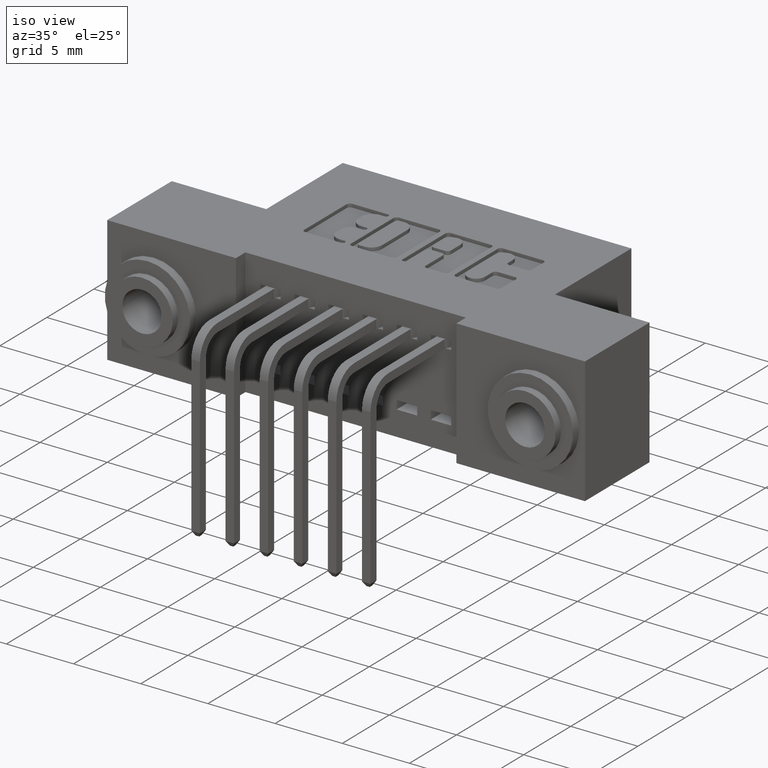
[diagram: clean part render]
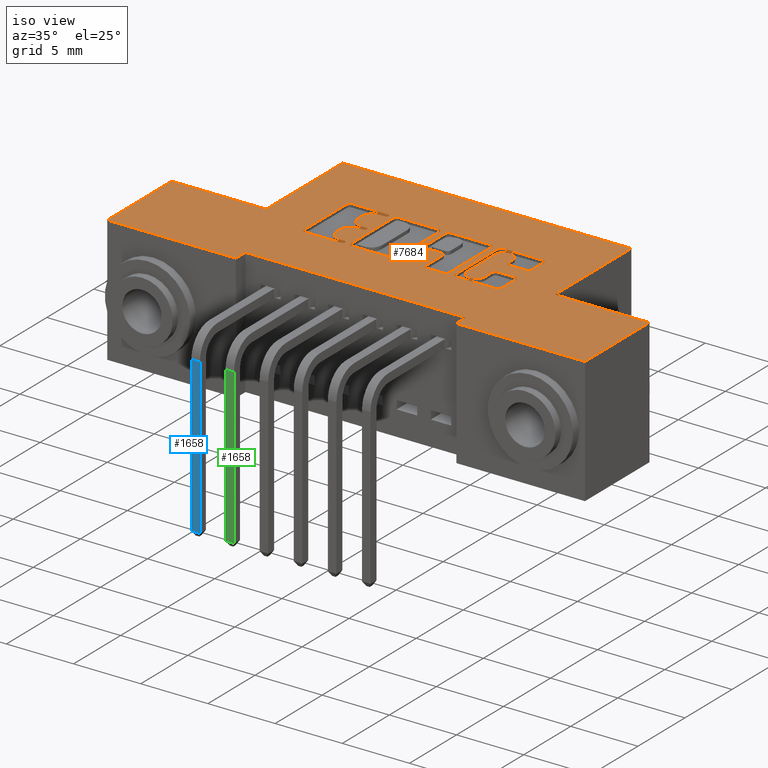
[diagram: same view with three faces highlighted in distinct colors, each labeled with its STEP entity id]
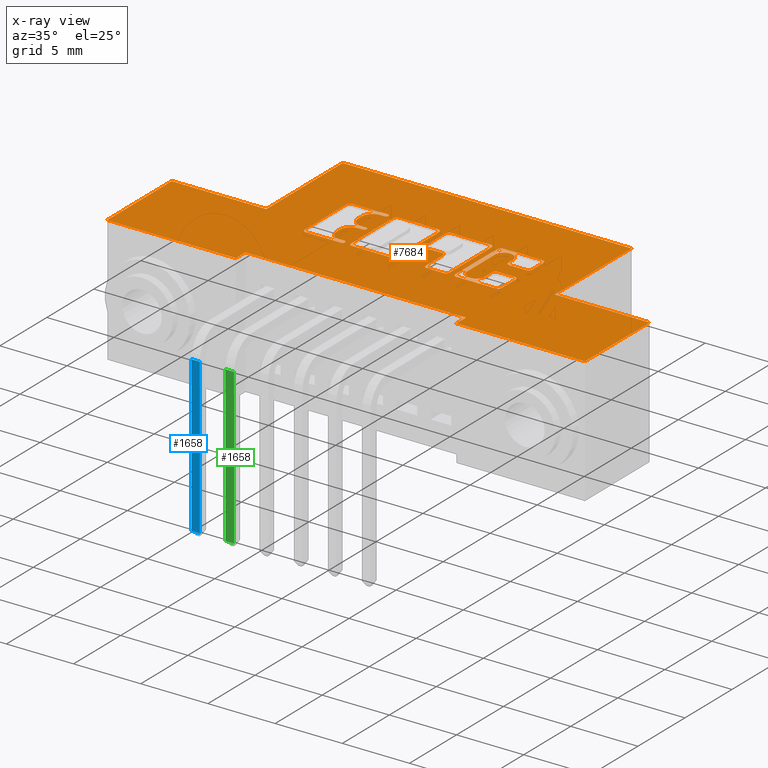
[diagram: x-ray of the same camera — body ghosted, the three highlighted faces saturated]
A machine part, iso view with three faces highlighted in distinct colors.
The next image is the same camera in x-ray (body ghosted, the three faces saturated) — at least one of them is partly hidden behind the body in this view.
Their STEP definitions:

[orange] entity #7684 — the highlighted planar face has unit normal (0, 0, -1).
#4 = VERTEX_POINT ( 'NONE', #7452 ) ;
#9 = EDGE_CURVE ( 'NONE', #8145, #2793, #5683, .T. ) ;
#11 = DIRECTION ( 'NONE',  ( 1.000000000000000000, 0.0000000000000000000, 0.0000000000000000000 ) ) ;
#69 = CARTESIAN_POINT ( 'NONE',  ( -2.134256245050205600E-018, 0.2699999999999999600, 0.0000000000000000000 ) ) ;
#70 = CIRCLE ( 'NONE', #4045, 0.006870969142663527000 ) ;
#108 = ORIENTED_EDGE ( 'NONE', *, *, #4227, .F. ) ;
#138 = CARTESIAN_POINT ( 'NONE',  ( 0.4882269153529095200, 0.0000000000000000000, 0.0000000000000000000 ) ) ;
#164 = EDGE_CURVE ( 'NONE', #8755, #7072, #8018, .T. ) ;
#192 = DIRECTION ( 'NONE',  ( -0.0000000000000000000, 0.0000000000000000000, 1.000000000000000000 ) ) ;
#198 = CARTESIAN_POINT ( 'NONE',  ( 0.5657707099629759600, 0.2168432979619831800, 0.0000000000000000000 ) ) ;
#207 = CARTESIAN_POINT ( 'NONE',  ( 0.5196370600050840300, 0.2767188862052005200, 0.0000000000000000000 ) ) ;
#211 = ORIENTED_EDGE ( 'NONE', *, *, #2259, .F. ) ;
#225 = ORIENTED_EDGE ( 'NONE', *, *, #2170, .F. ) ;
#232 = CIRCLE ( 'NONE', #7446, 0.03141014465218178200 ) ;
#309 = VERTEX_POINT ( 'NONE', #6603 ) ;
#320 = EDGE_CURVE ( 'NONE', #5410, #2401, #7406, .T. ) ;
#325 = VECTOR ( 'NONE', #5091, 39.37007874015748100 ) ;
#327 = ORIENTED_EDGE ( 'NONE', *, *, #1580, .F. ) ;
#331 = CARTESIAN_POINT ( 'NONE',  ( 0.9868629617061319700, 0.4033410318342109400, 0.0000000000000000000 ) ) ;
#345 = VECTOR ( 'NONE', #1190, 39.37007874015748100 ) ;
#360 = VERTEX_POINT ( 'NONE', #3255 ) ;
#378 = LINE ( 'NONE', #1042, #3935 ) ;
#405 = VERTEX_POINT ( 'NONE', #69 ) ;
#407 = VERTEX_POINT ( 'NONE', #556 ) ;
#420 = VERTEX_POINT ( 'NONE', #4756 ) ;
#426 = VERTEX_POINT ( 'NONE', #952 ) ;
#431 = EDGE_CURVE ( 'NONE', #890, #7905, #4522, .T. ) ;
#522 = EDGE_CURVE ( 'NONE', #5961, #3945, #8946, .T. ) ;
#527 = CIRCLE ( 'NONE', #2618, 0.009815670203803203800 ) ;
#539 = DIRECTION ( 'NONE',  ( 1.000000000000000000, 0.0000000000000000000, 0.0000000000000000000 ) ) ;
#556 = CARTESIAN_POINT ( 'NONE',  ( 0.6815956183678620900, 0.2168432979619831800, 0.0000000000000000000 ) ) ;
#557 = EDGE_CURVE ( 'NONE', #426, #7886, #3584, .T. ) ;
#580 = CARTESIAN_POINT ( 'NONE',  ( 0.5559550397591692700, 0.0000000000000000000, 0.0000000000000000000 ) ) ;
#582 = VECTOR ( 'NONE', #4654, 39.37007874015748100 ) ;
#591 = ORIENTED_EDGE ( 'NONE', *, *, #7331, .F. ) ;
#612 = EDGE_CURVE ( 'NONE', #5150, #2185, #6562, .T. ) ;
#629 = CARTESIAN_POINT ( 'NONE',  ( 0.9966786319099720800, 0.0000000000000000000, 0.0000000000000000000 ) ) ;
#636 = DIRECTION ( 'NONE',  ( -0.0000000000000000000, 0.0000000000000000000, 1.000000000000000000 ) ) ;
#692 = CIRCLE ( 'NONE', #7195, 0.009815670203804980100 ) ;
#693 = CARTESIAN_POINT ( 'NONE',  ( 0.6914112885716690000, 0.2266589681657899300, 0.0000000000000000000 ) ) ;
#697 = ORIENTED_EDGE ( 'NONE', *, *, #8234, .F. ) ;
#717 = AXIS2_PLACEMENT_3D ( 'NONE', #7071, #7061, #7053 ) ;
#732 = EDGE_CURVE ( 'NONE', #4709, #5961, #4105, .T. ) ;
#741 = VECTOR ( 'NONE', #5620, 39.37007874015748100 ) ;
#751 = DIRECTION ( 'NONE',  ( 0.0000000000000000000, 1.000000000000000000, -0.0000000000000000000 ) ) ;
#756 = ORIENTED_EDGE ( 'NONE', *, *, #5928, .F. ) ;
#774 = ORIENTED_EDGE ( 'NONE', *, *, #920, .F. ) ;
#781 = CARTESIAN_POINT ( 'NONE',  ( 0.6914112885716690000, 0.0000000000000000000, 0.0000000000000000000 ) ) ;
#784 = VECTOR ( 'NONE', #871, 39.37007874015748100 ) ;
#785 = VERTEX_POINT ( 'NONE', #2537 ) ;
#803 = CARTESIAN_POINT ( 'NONE',  ( 1.399999999999999900, 0.2699999999999999600, 0.0000000000000000000 ) ) ;
#809 = ORIENTED_EDGE ( 'NONE', *, *, #5952, .F. ) ;
#830 = CARTESIAN_POINT ( 'NONE',  ( 0.9274781569731658200, 0.3537718973050452100, 0.0000000000000000000 ) ) ;
#837 = CARTESIAN_POINT ( 'NONE',  ( 0.5196370600051253300, 0.3994147637527357100, 0.0000000000000000000 ) ) ;
#840 = CIRCLE ( 'NONE', #5956, 0.009815670203806754800 ) ;
#871 = DIRECTION ( 'NONE',  ( 0.0000000000000000000, -1.000000000000000000, 0.0000000000000000000 ) ) ;
#890 = VERTEX_POINT ( 'NONE', #6960 ) ;
#908 = VERTEX_POINT ( 'NONE', #7197 ) ;
#920 = EDGE_CURVE ( 'NONE', #5279, #2678, #692, .T. ) ;
#927 = CARTESIAN_POINT ( 'NONE',  ( 0.9966786319099402200, 0.2865345564089704100, 0.0000000000000000000 ) ) ;
#951 = LINE ( 'NONE', #6952, #6292 ) ;
#952 = CARTESIAN_POINT ( 'NONE',  ( 0.5331336065353099500, 0.3218709691426838700, 0.0000000000000000000 ) ) ;
#956 = EDGE_CURVE ( 'NONE', #8245, #7664, #3994, .T. ) ;
#1000 = DIRECTION ( 'NONE',  ( 1.000000000000000000, 0.0000000000000000000, 0.0000000000000000000 ) ) ;
#1019 = FACE_BOUND ( 'NONE', #1244, .T. ) ;
#1033 = DIRECTION ( 'NONE',  ( 0.0000000000000000000, 1.000000000000000000, -0.0000000000000000000 ) ) ;
#1042 = CARTESIAN_POINT ( 'NONE',  ( 0.0000000000000000000, 0.0000000000000000000, 0.0000000000000000000 ) ) ;
#1048 = EDGE_CURVE ( 'NONE', #8022, #4596, #8726, .T. ) ;
#1097 = DIRECTION ( 'NONE',  ( 1.000000000000000000, 0.0000000000000000000, 0.0000000000000000000 ) ) ;
#1121 = CARTESIAN_POINT ( 'NONE',  ( 0.9868629617061529500, 0.2865345564089704100, 0.0000000000000000000 ) ) ;
#1144 = ORIENTED_EDGE ( 'NONE', *, *, #7624, .T. ) ;
#1146 = AXIS2_PLACEMENT_3D ( 'NONE', #2413, #8326, #1552 ) ;
#1151 = CARTESIAN_POINT ( 'NONE',  ( 0.7085887114283309100, 0.4033410318342101100, 0.0000000000000000000 ) ) ;
#1153 = ORIENTED_EDGE ( 'NONE', *, *, #522, .T. ) ;
#1185 = CIRCLE ( 'NONE', #6185, 0.009815670203788042300 ) ;
#1190 = DIRECTION ( 'NONE',  ( -1.000000000000000000, 0.0000000000000000000, 0.0000000000000000000 ) ) ;
#1201 = CARTESIAN_POINT ( 'NONE',  ( 0.0000000000000000000, 0.2963502266127575600, 0.0000000000000000000 ) ) ;
#1242 = FACE_BOUND ( 'NONE', #3667, .T. ) ;
#1244 = EDGE_LOOP ( 'NONE', ( #7831, #697, #2608, #4657, #6472, #8223, #4869, #6900, #8635, #5276, #7528, #327, #4113, #2501, #809, #2947, #8337, #1252, #7228, #3795, #7839 ) ) ;
#1251 = EDGE_CURVE ( 'NONE', #3813, #6537, #7096, .T. ) ;
#1252 = ORIENTED_EDGE ( 'NONE', *, *, #3447, .F. ) ;
#1255 = DIRECTION ( 'NONE',  ( -0.0000000000000000000, 0.0000000000000000000, 1.000000000000000000 ) ) ;
#1270 = EDGE_CURVE ( 'NONE', #7697, #4650, #5065, .T. ) ;
#1295 = EDGE_LOOP ( 'NONE', ( #6158, #4767, #8342, #8752, #1706, #3801, #5606, #225 ) ) ;
#1309 = CARTESIAN_POINT ( 'NONE',  ( 0.5331336064154143000, 0.2168432979619857000, 0.0000000000000000000 ) ) ;
#1311 = CARTESIAN_POINT ( 'NONE',  ( 0.6815956183678620900, 0.2266589681657899300, 0.0000000000000000000 ) ) ;
#1318 = CARTESIAN_POINT ( 'NONE',  ( 0.8749643213828183200, 0.0000000000000000000, 0.0000000000000000000 ) ) ;
#1335 = EDGE_CURVE ( 'NONE', #2033, #7886, #4634, .T. ) ;
#1367 = ORIENTED_EDGE ( 'NONE', *, *, #7573, .T. ) ;
#1377 = ORIENTED_EDGE ( 'NONE', *, *, #3105, .T. ) ;
#1401 = CARTESIAN_POINT ( 'NONE',  ( 0.7650288151001881600, 0.3081290308573497700, 0.0000000000000000000 ) ) ;
#1426 = DIRECTION ( 'NONE',  ( -0.0000000000000000000, 0.0000000000000000000, 1.000000000000000000 ) ) ;
#1450 = CARTESIAN_POINT ( 'NONE',  ( 0.4190264404161153600, 0.2266589681657899300, 0.0000000000000000000 ) ) ;
#1457 = EDGE_CURVE ( 'NONE', #2678, #3013, #5573, .T. ) ;
#1511 = DIRECTION ( 'NONE',  ( 0.0000000000000000000, 1.000000000000000000, -0.0000000000000000000 ) ) ;
#1526 = VERTEX_POINT ( 'NONE', #2044 ) ;
#1538 = CARTESIAN_POINT ( 'NONE',  ( 0.5400045756779734400, 0.3150000000000203200, 0.0000000000000000000 ) ) ;
#1544 = DIRECTION ( 'NONE',  ( 1.000000000000000000, 0.0000000000000000000, 0.0000000000000000000 ) ) ;
#1552 = DIRECTION ( 'NONE',  ( 1.000000000000000000, 0.0000000000000000000, 0.0000000000000000000 ) ) ;
#1572 = DIRECTION ( 'NONE',  ( -0.0000000000000000000, 0.0000000000000000000, 1.000000000000000000 ) ) ;
#1580 = EDGE_CURVE ( 'NONE', #2793, #5231, #2921, .T. ) ;
#1593 = VECTOR ( 'NONE', #751, 39.37007874015748100 ) ;
#1594 = CARTESIAN_POINT ( 'NONE',  ( 0.5657707099630101500, 0.4033410318342101100, 0.0000000000000000000 ) ) ;
#1600 = EDGE_CURVE ( 'NONE', #7968, #3813, #2702, .T. ) ;
#1613 = LINE ( 'NONE', #1860, #6940 ) ;
#1619 = CARTESIAN_POINT ( 'NONE',  ( -1.562019070573209700E-015, 0.2168432979619818700, 0.0000000000000000000 ) ) ;
#1646 = DIRECTION ( 'NONE',  ( 1.000000000000000000, 0.0000000000000000000, 0.0000000000000000000 ) ) ;
#1649 = VECTOR ( 'NONE', #6767, 39.37007874015748100 ) ;
#1686 = CARTESIAN_POINT ( 'NONE',  ( 0.9274781569731789200, 0.0000000000000000000, 0.0000000000000000000 ) ) ;
#1706 = ORIENTED_EDGE ( 'NONE', *, *, #1251, .F. ) ;
#1710 = VECTOR ( 'NONE', #2257, 39.37007874015748100 ) ;
#1718 = DIRECTION ( 'NONE',  ( 0.0000000000000000000, 1.000000000000000000, -0.0000000000000000000 ) ) ;
#1719 = DIRECTION ( 'NONE',  ( 1.000000000000000000, 0.0000000000000000000, 0.0000000000000000000 ) ) ;
#1732 = DIRECTION ( 'NONE',  ( -0.0000000000000000000, 0.0000000000000000000, 1.000000000000000000 ) ) ;
#1742 = EDGE_CURVE ( 'NONE', #7697, #4892, #1775, .T. ) ;
#1755 = AXIS2_PLACEMENT_3D ( 'NONE', #2039, #6966, #8193 ) ;
#1759 = LINE ( 'NONE', #8720, #8801 ) ;
#1775 = LINE ( 'NONE', #1318, #5248 ) ;
#1780 = DIRECTION ( 'NONE',  ( 0.0000000000000000000, 1.000000000000000000, -0.0000000000000000000 ) ) ;
#1805 = DIRECTION ( 'NONE',  ( 0.0000000000000000000, -1.000000000000000000, 0.0000000000000000000 ) ) ;
#1808 = VERTEX_POINT ( 'NONE', #4350 ) ;
#1812 = CARTESIAN_POINT ( 'NONE',  ( 0.9012212391779921300, 0.3731578459575296000, 0.0000000000000000000 ) ) ;
#1827 = DIRECTION ( 'NONE',  ( 1.000000000000000000, 0.0000000000000000000, 0.0000000000000000000 ) ) ;
#1841 = DIRECTION ( 'NONE',  ( 1.000000000000000000, 0.0000000000000000000, 0.0000000000000000000 ) ) ;
#1860 = CARTESIAN_POINT ( 'NONE',  ( 0.2770000000000000200, 0.2699999999999999600, -1.696135816819084800E-017 ) ) ;
#1876 = DIRECTION ( 'NONE',  ( 1.000000000000000000, 0.0000000000000000000, 0.0000000000000000000 ) ) ;
#1887 = DIRECTION ( 'NONE',  ( -0.0000000000000000000, 0.0000000000000000000, 1.000000000000000000 ) ) ;
#1897 = CARTESIAN_POINT ( 'NONE',  ( 0.4882269153529277300, 0.2619953808994903700, 0.0000000000000000000 ) ) ;
#1905 = LINE ( 'NONE', #4895, #8941 ) ;
#1906 = DIRECTION ( 'NONE',  ( -1.000000000000000000, -1.189163988687022500E-013, 0.0000000000000000000 ) ) ;
#1922 = CARTESIAN_POINT ( 'NONE',  ( 0.7846601555077880000, 0.2266589681657878200, 0.0000000000000000000 ) ) ;
#1937 = VECTOR ( 'NONE', #3002, 39.37007874015748100 ) ;
#1952 = CARTESIAN_POINT ( 'NONE',  ( 0.4882269153529277300, 0.0000000000000000000, 0.0000000000000000000 ) ) ;
#2009 = CIRCLE ( 'NONE', #7427, 0.006870969142648501700 ) ;
#2033 = VERTEX_POINT ( 'NONE', #8876 ) ;
#2038 = ORIENTED_EDGE ( 'NONE', *, *, #7310, .F. ) ;
#2039 = CARTESIAN_POINT ( 'NONE',  ( 0.5196370600051253300, 0.3680046191005197900, 0.0000000000000000000 ) ) ;
#2044 = CARTESIAN_POINT ( 'NONE',  ( 0.3770000000000000600, 0.04000000000000000100, 0.0000000000000000000 ) ) ;
#2062 = AXIS2_PLACEMENT_3D ( 'NONE', #8606, #8571, #8799 ) ;
#2093 = CARTESIAN_POINT ( 'NONE',  ( -0.0000000000000000000, 0.3081290308573568200, 0.0000000000000000000 ) ) ;
#2102 = CARTESIAN_POINT ( 'NONE',  ( 0.2770000000000000200, 0.2699999999999999600, -1.696135816819084800E-017 ) ) ;
#2125 = ORIENTED_EDGE ( 'NONE', *, *, #5465, .T. ) ;
#2139 = VECTOR ( 'NONE', #6145, 39.37007874015748100 ) ;
#2170 = EDGE_CURVE ( 'NONE', #7905, #3624, #2469, .T. ) ;
#2184 = EDGE_CURVE ( 'NONE', #908, #8366, #70, .T. ) ;
#2185 = VERTEX_POINT ( 'NONE', #3963 ) ;
#2201 = VECTOR ( 'NONE', #1805, 39.37007874015748100 ) ;
#2226 = CARTESIAN_POINT ( 'NONE',  ( 0.9966786319099402200, 0.0000000000000000000, 0.0000000000000000000 ) ) ;
#2241 = AXIS2_PLACEMENT_3D ( 'NONE', #6665, #6650, #6626 ) ;
#2257 = DIRECTION ( 'NONE',  ( 0.0000000000000000000, 1.000000000000000000, -0.0000000000000000000 ) ) ;
#2259 = EDGE_CURVE ( 'NONE', #2331, #3655, #8594, .T. ) ;
#2272 = LINE ( 'NONE', #4162, #325 ) ;
#2331 = VERTEX_POINT ( 'NONE', #3684 ) ;
#2336 = DIRECTION ( 'NONE',  ( 1.000000000000000000, 0.0000000000000000000, 0.0000000000000000000 ) ) ;
#2363 = DIRECTION ( 'NONE',  ( 1.000000000000000000, 7.203446383881649800E-015, 0.0000000000000000000 ) ) ;
#2382 = ORIENTED_EDGE ( 'NONE', *, *, #1457, .F. ) ;
#2401 = VERTEX_POINT ( 'NONE', #6629 ) ;
#2405 = CARTESIAN_POINT ( 'NONE',  ( 0.7223306497136469100, 0.2983133606535455800, 0.0000000000000000000 ) ) ;
#2410 = CARTESIAN_POINT ( 'NONE',  ( 0.5559550397591692700, 0.2266589681657899300, 0.0000000000000000000 ) ) ;
#2413 = CARTESIAN_POINT ( 'NONE',  ( 0.7650288151001877200, 0.2983133606535527900, 0.0000000000000000000 ) ) ;
#2429 = VECTOR ( 'NONE', #3607, 39.37007874015748100 ) ;
#2450 = VERTEX_POINT ( 'NONE', #927 ) ;
#2452 = EDGE_CURVE ( 'NONE', #3945, #2694, #3550, .T. ) ;
#2459 = DIRECTION ( 'NONE',  ( -0.0000000000000000000, -1.000000000000000000, -0.0000000000000000000 ) ) ;
#2469 = LINE ( 'NONE', #3705, #3862 ) ;
#2498 = CARTESIAN_POINT ( 'NONE',  ( 0.7846601555077856700, 0.2168432979619846200, 0.0000000000000000000 ) ) ;
#2501 = ORIENTED_EDGE ( 'NONE', *, *, #7929, .F. ) ;
#2502 = VECTOR ( 'NONE', #2363, 39.37007874015748100 ) ;
#2537 = CARTESIAN_POINT ( 'NONE',  ( 0.4190264404161153600, 0.4033410318342101100, 0.0000000000000000000 ) ) ;
#2544 = CARTESIAN_POINT ( 'NONE',  ( 0.5196370600050840300, 0.3218709691426838700, 0.0000000000000000000 ) ) ;
#2548 = AXIS2_PLACEMENT_3D ( 'NONE', #5958, #5977, #11 ) ;
#2549 = EDGE_CURVE ( 'NONE', #405, #8352, #2901, .T. ) ;
#2571 = VERTEX_POINT ( 'NONE', #7099 ) ;
#2596 = CARTESIAN_POINT ( 'NONE',  ( 0.0000000000000000000, 0.5899999999999999700, 0.0000000000000000000 ) ) ;
#2608 = ORIENTED_EDGE ( 'NONE', *, *, #1335, .T. ) ;
#2618 = AXIS2_PLACEMENT_3D ( 'NONE', #1922, #1887, #1876 ) ;
#2632 = EDGE_CURVE ( 'NONE', #5231, #4894, #7489, .T. ) ;
#2641 = CARTESIAN_POINT ( 'NONE',  ( 0.6815956183678960600, 0.4131567020380509900, 0.0000000000000000000 ) ) ;
#2647 = ORIENTED_EDGE ( 'NONE', *, *, #1742, .F. ) ;
#2655 = LINE ( 'NONE', #5969, #741 ) ;
#2661 = EDGE_CURVE ( 'NONE', #309, #8783, #1759, .T. ) ;
#2662 = LINE ( 'NONE', #4119, #7872 ) ;
#2664 = CARTESIAN_POINT ( 'NONE',  ( 0.8342292900370138500, 0.4131567020380065300, 0.0000000000000000000 ) ) ;
#2678 = VERTEX_POINT ( 'NONE', #8256 ) ;
#2694 = VERTEX_POINT ( 'NONE', #6964 ) ;
#2702 = LINE ( 'NONE', #580, #784 ) ;
#2713 = VERTEX_POINT ( 'NONE', #6717 ) ;
#2728 = LINE ( 'NONE', #3870, #582 ) ;
#2793 = VERTEX_POINT ( 'NONE', #4798 ) ;
#2841 = EDGE_LOOP ( 'NONE', ( #4020, #5821, #4231, #6057, #7847, #2852, #4674, #1153, #3059, #6692, #1377, #3265, #6918, #8651 ) ) ;
#2852 = ORIENTED_EDGE ( 'NONE', *, *, #3040, .F. ) ;
#2887 = VECTOR ( 'NONE', #5738, 39.37007874015748100 ) ;
#2901 = LINE ( 'NONE', #2596, #4942 ) ;
#2904 = CARTESIAN_POINT ( 'NONE',  ( 1.022999999999999900, 0.04000000000000000100, -1.895600338963814900E-033 ) ) ;
#2917 = DIRECTION ( 'NONE',  ( 1.000000000000000000, 0.0000000000000000000, 0.0000000000000000000 ) ) ;
#2920 = CARTESIAN_POINT ( 'NONE',  ( 0.4190264404161153600, 0.0000000000000000000, 0.0000000000000000000 ) ) ;
#2921 = CIRCLE ( 'NONE', #2548, 0.006870969142662229500 ) ;
#2924 = CARTESIAN_POINT ( 'NONE',  ( 0.5559550397591692700, 0.4033410318342101100, 0.0000000000000000000 ) ) ;
#2947 = ORIENTED_EDGE ( 'NONE', *, *, #3957, .F. ) ;
#2949 = DIRECTION ( 'NONE',  ( -0.0000000000000000000, 0.0000000000000000000, 1.000000000000000000 ) ) ;
#2963 = CARTESIAN_POINT ( 'NONE',  ( 0.5196370600051095600, 0.2619953808994903700, 0.0000000000000000000 ) ) ;
#3002 = DIRECTION ( 'NONE',  ( 1.000000000000000000, 0.0000000000000000000, 0.0000000000000000000 ) ) ;
#3009 = VERTEX_POINT ( 'NONE', #7219 ) ;
#3013 = VERTEX_POINT ( 'NONE', #7740 ) ;
#3040 = EDGE_CURVE ( 'NONE', #4709, #6263, #527, .T. ) ;
#3048 = DIRECTION ( 'NONE',  ( -0.0000000000000000000, 0.0000000000000000000, 1.000000000000000000 ) ) ;
#3052 = ORIENTED_EDGE ( 'NONE', *, *, #956, .F. ) ;
#3059 = ORIENTED_EDGE ( 'NONE', *, *, #2452, .T. ) ;
#3074 = CIRCLE ( 'NONE', #4229, 0.009815670203787221800 ) ;
#3079 = CARTESIAN_POINT ( 'NONE',  ( -0.0000000000000000000, 0.4131567020380065300, 0.0000000000000000000 ) ) ;
#3094 = ORIENTED_EDGE ( 'NONE', *, *, #1270, .T. ) ;
#3105 = EDGE_CURVE ( 'NONE', #5041, #7200, #7478, .T. ) ;
#3152 = VERTEX_POINT ( 'NONE', #5195 ) ;
#3156 = EDGE_CURVE ( 'NONE', #360, #8245, #5032, .T. ) ;
#3157 = DIRECTION ( 'NONE',  ( -1.000000000000000000, 0.0000000000000000000, 0.0000000000000000000 ) ) ;
#3163 = VERTEX_POINT ( 'NONE', #7829 ) ;
#3165 = DIRECTION ( 'NONE',  ( 1.000000000000000000, 0.0000000000000000000, 0.0000000000000000000 ) ) ;
#3179 = CIRCLE ( 'NONE', #8898, 0.03141014465215624000 ) ;
#3206 = AXIS2_PLACEMENT_3D ( 'NONE', #3272, #3048, #3165 ) ;
#3243 = EDGE_CURVE ( 'NONE', #8366, #426, #6206, .T. ) ;
#3255 = CARTESIAN_POINT ( 'NONE',  ( 1.122999999999999800, 0.2699999999999999600, -1.205664773760568800E-016 ) ) ;
#3258 = LINE ( 'NONE', #6519, #8439 ) ;
#3265 = ORIENTED_EDGE ( 'NONE', *, *, #4670, .F. ) ;
#3269 = DIRECTION ( 'NONE',  ( -0.0000000000000000000, 0.0000000000000000000, 1.000000000000000000 ) ) ;
#3272 = CARTESIAN_POINT ( 'NONE',  ( 0.7321463199174501600, 0.2983133606535455800, 0.0000000000000000000 ) ) ;
#3302 = VERTEX_POINT ( 'NONE', #7754 ) ;
#3344 = DIRECTION ( 'NONE',  ( 1.000000000000000000, 0.0000000000000000000, 0.0000000000000000000 ) ) ;
#3353 = VECTOR ( 'NONE', #1780, 39.37007874015748100 ) ;
#3363 = ORIENTED_EDGE ( 'NONE', *, *, #3711, .F. ) ;
#3365 = VECTOR ( 'NONE', #3157, 39.37007874015748100 ) ;
#3366 = DIRECTION ( 'NONE',  ( -0.0000000000000000000, 0.0000000000000000000, 1.000000000000000000 ) ) ;
#3434 = VERTEX_POINT ( 'NONE', #8856 ) ;
#3447 = EDGE_CURVE ( 'NONE', #1808, #5764, #6518, .T. ) ;
#3448 = CARTESIAN_POINT ( 'NONE',  ( -0.0000000000000000000, 0.2168432979619831800, 0.0000000000000000000 ) ) ;
#3452 = VERTEX_POINT ( 'NONE', #1151 ) ;
#3457 = CARTESIAN_POINT ( 'NONE',  ( 0.0000000000000000000, 0.0000000000000000000, 0.0000000000000000000 ) ) ;
#3458 = DIRECTION ( 'NONE',  ( -0.0000000000000000000, 0.0000000000000000000, 1.000000000000000000 ) ) ;
#3500 = CARTESIAN_POINT ( 'NONE',  ( -1.087960964565588400E-014, 0.3081290308573227400, 0.0000000000000000000 ) ) ;
#3532 = AXIS2_PLACEMENT_3D ( 'NONE', #6789, #4509, #5839 ) ;
#3547 = EDGE_CURVE ( 'NONE', #3959, #4188, #4052, .T. ) ;
#3550 = LINE ( 'NONE', #3500, #1649 ) ;
#3577 = LINE ( 'NONE', #3457, #8734 ) ;
#3584 = LINE ( 'NONE', #4255, #3365 ) ;
#3607 = DIRECTION ( 'NONE',  ( 0.0000000000000000000, -1.000000000000000000, 0.0000000000000000000 ) ) ;
#3624 = VERTEX_POINT ( 'NONE', #7174 ) ;
#3629 = CARTESIAN_POINT ( 'NONE',  ( 0.5196370600051095600, 0.2305852362473085900, 0.0000000000000000000 ) ) ;
#3645 = VECTOR ( 'NONE', #5731, 39.37007874015748100 ) ;
#3647 = DIRECTION ( 'NONE',  ( -1.000000000000000000, 0.0000000000000000000, 0.0000000000000000000 ) ) ;
#3655 = VERTEX_POINT ( 'NONE', #5577 ) ;
#3667 = EDGE_LOOP ( 'NONE', ( #774, #6421, #4182, #756, #2125, #2647, #3094, #8055, #7440, #7726, #7922, #6361, #4746, #3363, #5165, #7002, #8942, #211, #7631, #2382 ) ) ;
#3670 = CARTESIAN_POINT ( 'NONE',  ( 0.8749643213828183200, 0.3731578459575296000, 0.0000000000000000000 ) ) ;
#3684 = CARTESIAN_POINT ( 'NONE',  ( 0.9868629617061682700, 0.4131567020380509900, 0.0000000000000000000 ) ) ;
#3686 = DIRECTION ( 'NONE',  ( -0.0000000000000000000, 0.0000000000000000000, 1.000000000000000000 ) ) ;
#3705 = CARTESIAN_POINT ( 'NONE',  ( 0.0000000000000000000, 0.4131567020380509900, 0.0000000000000000000 ) ) ;
#3707 = LINE ( 'NONE', #781, #1593 ) ;
#3711 = EDGE_CURVE ( 'NONE', #3009, #8755, #7969, .T. ) ;
#3740 = AXIS2_PLACEMENT_3D ( 'NONE', #5929, #5920, #5909 ) ;
#3741 = CARTESIAN_POINT ( 'NONE',  ( 0.5331336065353354800, 0.2237142671046479200, 0.0000000000000000000 ) ) ;
#3795 = ORIENTED_EDGE ( 'NONE', *, *, #8859, .F. ) ;
#3801 = ORIENTED_EDGE ( 'NONE', *, *, #1600, .F. ) ;
#3813 = VERTEX_POINT ( 'NONE', #2410 ) ;
#3848 = CARTESIAN_POINT ( 'NONE',  ( 0.5331336065353513600, 0.3994147637527357100, 0.0000000000000000000 ) ) ;
#3862 = VECTOR ( 'NONE', #6467, 39.37007874015748100 ) ;
#3870 = CARTESIAN_POINT ( 'NONE',  ( -2.134256245050205600E-018, 0.2699999999999999600, 0.0000000000000000000 ) ) ;
#3911 = EDGE_CURVE ( 'NONE', #2571, #6232, #7871, .T. ) ;
#3913 = LINE ( 'NONE', #1201, #345 ) ;
#3935 = VECTOR ( 'NONE', #1000, 39.37007874015748100 ) ;
#3937 = EDGE_CURVE ( 'NONE', #3152, #4650, #5851, .T. ) ;
#3938 = VERTEX_POINT ( 'NONE', #1450 ) ;
#3944 = DIRECTION ( 'NONE',  ( 1.000000000000000000, 0.0000000000000000000, 0.0000000000000000000 ) ) ;
#3945 = VERTEX_POINT ( 'NONE', #1401 ) ;
#3957 = EDGE_CURVE ( 'NONE', #785, #3938, #6084, .T. ) ;
#3959 = VERTEX_POINT ( 'NONE', #837 ) ;
#3963 = CARTESIAN_POINT ( 'NONE',  ( 0.9372938271769775100, 0.3439562271012335800, 0.0000000000000000000 ) ) ;
#3969 = EDGE_CURVE ( 'NONE', #3624, #7968, #4044, .T. ) ;
#3994 = LINE ( 'NONE', #8120, #2139 ) ;
#4020 = ORIENTED_EDGE ( 'NONE', *, *, #6208, .T. ) ;
#4026 = LINE ( 'NONE', #3079, #1937 ) ;
#4039 = DIRECTION ( 'NONE',  ( 1.000000000000000000, 0.0000000000000000000, 0.0000000000000000000 ) ) ;
#4044 = CIRCLE ( 'NONE', #4868, 0.009815670203840902800 ) ;
#4045 = AXIS2_PLACEMENT_3D ( 'NONE', #8443, #3686, #3944 ) ;
#4052 = CIRCLE ( 'NONE', #1755, 0.03141014465221592800 ) ;
#4057 = EDGE_CURVE ( 'NONE', #6821, #4596, #3179, .T. ) ;
#4058 = DIRECTION ( 'NONE',  ( -0.0000000000000000000, 0.0000000000000000000, 1.000000000000000000 ) ) ;
#4098 = CARTESIAN_POINT ( 'NONE',  ( 0.9372938271769669600, 0.2865345564089695800, 0.0000000000000000000 ) ) ;
#4100 = AXIS2_PLACEMENT_3D ( 'NONE', #6523, #6516, #6514 ) ;
#4105 = LINE ( 'NONE', #7327, #7521 ) ;
#4106 = DIRECTION ( 'NONE',  ( 0.0000000000000000000, -1.000000000000000000, 0.0000000000000000000 ) ) ;
#4113 = ORIENTED_EDGE ( 'NONE', *, *, #9, .F. ) ;
#4119 = CARTESIAN_POINT ( 'NONE',  ( 0.8612223830974584700, 0.0000000000000000000, 0.0000000000000000000 ) ) ;
#4129 = AXIS2_PLACEMENT_3D ( 'NONE', #1812, #1732, #1719 ) ;
#4140 = DIRECTION ( 'NONE',  ( -0.0000000000000000000, 0.0000000000000000000, 1.000000000000000000 ) ) ;
#4159 = CARTESIAN_POINT ( 'NONE',  ( 0.8710380533012994600, 0.4033410318342101100, 0.0000000000000000000 ) ) ;
#4162 = CARTESIAN_POINT ( 'NONE',  ( 0.3770000000000000600, 0.04000000000000000100, 0.0000000000000000000 ) ) ;
#4177 = EDGE_CURVE ( 'NONE', #2571, #3302, #5737, .T. ) ;
#4182 = ORIENTED_EDGE ( 'NONE', *, *, #612, .F. ) ;
#4188 = VERTEX_POINT ( 'NONE', #4638 ) ;
#4227 = EDGE_CURVE ( 'NONE', #8109, #309, #1613, .T. ) ;
#4229 = AXIS2_PLACEMENT_3D ( 'NONE', #1121, #192, #8014 ) ;
#4231 = ORIENTED_EDGE ( 'NONE', *, *, #4177, .T. ) ;
#4255 = CARTESIAN_POINT ( 'NONE',  ( 0.0000000000000000000, 0.3218709691426838700, 0.0000000000000000000 ) ) ;
#4274 = CARTESIAN_POINT ( 'NONE',  ( 0.7223306497136469100, 0.0000000000000000000, 0.0000000000000000000 ) ) ;
#4280 = VERTEX_POINT ( 'NONE', #5843 ) ;
#4281 = EDGE_CURVE ( 'NONE', #2450, #3434, #3074, .T. ) ;
#4330 = CIRCLE ( 'NONE', #4954, 0.009815670203840902800 ) ;
#4332 = LINE ( 'NONE', #1619, #2502 ) ;
#4350 = CARTESIAN_POINT ( 'NONE',  ( 0.5331336065353512500, 0.4131567020380327300, 0.0000000000000000000 ) ) ;
#4363 = CARTESIAN_POINT ( 'NONE',  ( 1.399999999999999900, 0.0000000000000000000, 0.0000000000000000000 ) ) ;
#4379 = VECTOR ( 'NONE', #1646, 39.37007874015748100 ) ;
#4391 = CARTESIAN_POINT ( 'NONE',  ( 0.5196370600050840300, 0.3532811137948583300, 0.0000000000000000000 ) ) ;
#4431 = DIRECTION ( 'NONE',  ( 1.000000000000000000, 0.0000000000000000000, 0.0000000000000000000 ) ) ;
#4442 = ORIENTED_EDGE ( 'NONE', *, *, #5659, .F. ) ;
#4446 = CIRCLE ( 'NONE', #7284, 0.009815670203840084000 ) ;
#4476 = CARTESIAN_POINT ( 'NONE',  ( 0.0000000000000000000, 0.2168432979619846200, 0.0000000000000000000 ) ) ;
#4494 = DIRECTION ( 'NONE',  ( -0.0000000000000000000, -1.000000000000000000, -0.0000000000000000000 ) ) ;
#4509 = DIRECTION ( 'NONE',  ( -0.0000000000000000000, 0.0000000000000000000, 1.000000000000000000 ) ) ;
#4522 = CIRCLE ( 'NONE', #5078, 0.009815670203841039800 ) ;
#4546 = DIRECTION ( 'NONE',  ( -1.000000000000000000, 0.0000000000000000000, 0.0000000000000000000 ) ) ;
#4558 = CARTESIAN_POINT ( 'NONE',  ( -2.742036592681153800E-014, 0.2305852362472467800, 0.0000000000000000000 ) ) ;
#4589 = CARTESIAN_POINT ( 'NONE',  ( 0.6815956183678278900, 0.4033410318342100000, 0.0000000000000000000 ) ) ;
#4596 = VERTEX_POINT ( 'NONE', #8569 ) ;
#4600 = VERTEX_POINT ( 'NONE', #8552 ) ;
#4608 = VERTEX_POINT ( 'NONE', #8612 ) ;
#4634 = CIRCLE ( 'NONE', #5464, 0.03141014465217447500 ) ;
#4638 = CARTESIAN_POINT ( 'NONE',  ( 0.4882269153529095200, 0.3680046191005197900, 0.0000000000000000000 ) ) ;
#4650 = VERTEX_POINT ( 'NONE', #7777 ) ;
#4654 = DIRECTION ( 'NONE',  ( 1.000000000000000000, 0.0000000000000000000, -6.123233995736768500E-017 ) ) ;
#4657 = ORIENTED_EDGE ( 'NONE', *, *, #557, .F. ) ;
#4663 = CIRCLE ( 'NONE', #3740, 0.009815670203796237100 ) ;
#4670 = EDGE_CURVE ( 'NONE', #5570, #7200, #5749, .T. ) ;
#4674 = ORIENTED_EDGE ( 'NONE', *, *, #732, .T. ) ;
#4709 = VERTEX_POINT ( 'NONE', #6423 ) ;
#4730 = CARTESIAN_POINT ( 'NONE',  ( 0.9274781569731658200, 0.3731578454992599000, 0.0000000000000000000 ) ) ;
#4746 = ORIENTED_EDGE ( 'NONE', *, *, #164, .F. ) ;
#4756 = CARTESIAN_POINT ( 'NONE',  ( 0.4288421106199185000, 0.2168432979619849500, 0.0000000000000000000 ) ) ;
#4767 = ORIENTED_EDGE ( 'NONE', *, *, #6469, .F. ) ;
#4798 = CARTESIAN_POINT ( 'NONE',  ( 0.5400045756779977600, 0.2237142671046479200, 0.0000000000000000000 ) ) ;
#4824 = CARTESIAN_POINT ( 'NONE',  ( 0.8612223830974584700, 0.4033410318342101100, 0.0000000000000000000 ) ) ;
#4831 = VECTOR ( 'NONE', #3647, 39.37007874015748100 ) ;
#4864 = EDGE_CURVE ( 'NONE', #2713, #3152, #1185, .T. ) ;
#4866 = DIRECTION ( 'NONE',  ( -0.0000000000000000000, 0.0000000000000000000, 1.000000000000000000 ) ) ;
#4868 = AXIS2_PLACEMENT_3D ( 'NONE', #1594, #1572, #1827 ) ;
#4869 = ORIENTED_EDGE ( 'NONE', *, *, #8016, .F. ) ;
#4872 = EDGE_CURVE ( 'NONE', #7731, #3163, #2662, .T. ) ;
#4890 = DIRECTION ( 'NONE',  ( 1.000000000000000000, 0.0000000000000000000, 0.0000000000000000000 ) ) ;
#4892 = VERTEX_POINT ( 'NONE', #3670 ) ;
#4894 = VERTEX_POINT ( 'NONE', #3629 ) ;
#4895 = CARTESIAN_POINT ( 'NONE',  ( 1.122999999999999800, 0.2699999999999999600, -1.205664773760568800E-016 ) ) ;
#4930 = DIRECTION ( 'NONE',  ( -0.0000000000000000000, 0.0000000000000000000, 1.000000000000000000 ) ) ;
#4942 = VECTOR ( 'NONE', #2459, 39.37007874015748100 ) ;
#4954 = AXIS2_PLACEMENT_3D ( 'NONE', #4159, #4140, #5100 ) ;
#4956 = CARTESIAN_POINT ( 'NONE',  ( 0.4288421106199221700, 0.2266589681657899300, 0.0000000000000000000 ) ) ;
#4975 = FACE_BOUND ( 'NONE', #1295, .T. ) ;
#4993 = VECTOR ( 'NONE', #6922, 39.37007874015748100 ) ;
#5017 = CARTESIAN_POINT ( 'NONE',  ( 0.0000000000000000000, 0.5899999999999999700, 0.0000000000000000000 ) ) ;
#5032 = LINE ( 'NONE', #7748, #3645 ) ;
#5037 = CARTESIAN_POINT ( 'NONE',  ( 0.7748444853039846400, 0.2983133606535434100, 0.0000000000000000000 ) ) ;
#5041 = VERTEX_POINT ( 'NONE', #2405 ) ;
#5042 = PLANE ( 'NONE',  #6295 ) ;
#5065 = CIRCLE ( 'NONE', #4100, 0.02625691779518036400 ) ;
#5078 = AXIS2_PLACEMENT_3D ( 'NONE', #4589, #1426, #1544 ) ;
#5091 = DIRECTION ( 'NONE',  ( -0.0000000000000000000, -1.000000000000000000, -0.0000000000000000000 ) ) ;
#5100 = DIRECTION ( 'NONE',  ( 1.000000000000000000, 0.0000000000000000000, 0.0000000000000000000 ) ) ;
#5130 = EDGE_CURVE ( 'NONE', #8352, #4600, #378, .T. ) ;
#5150 = VERTEX_POINT ( 'NONE', #830 ) ;
#5165 = ORIENTED_EDGE ( 'NONE', *, *, #6615, .F. ) ;
#5166 = VECTOR ( 'NONE', #1033, 39.37007874015748100 ) ;
#5195 = CARTESIAN_POINT ( 'NONE',  ( 0.9274781569731789200, 0.2865345564089686900, 0.0000000000000000000 ) ) ;
#5196 = VECTOR ( 'NONE', #5460, 39.37007874015748100 ) ;
#5211 = CARTESIAN_POINT ( 'NONE',  ( 1.022999999999999900, 0.04000000000000000100, -1.895600338963814900E-033 ) ) ;
#5226 = AXIS2_PLACEMENT_3D ( 'NONE', #3741, #3458, #3344 ) ;
#5231 = VERTEX_POINT ( 'NONE', #7786 ) ;
#5248 = VECTOR ( 'NONE', #1718, 39.37007874015748100 ) ;
#5276 = ORIENTED_EDGE ( 'NONE', *, *, #6182, .T. ) ;
#5277 = VECTOR ( 'NONE', #1841, 39.37007874015748100 ) ;
#5279 = VERTEX_POINT ( 'NONE', #6047 ) ;
#5285 = ORIENTED_EDGE ( 'NONE', *, *, #2661, .F. ) ;
#5292 = EDGE_CURVE ( 'NONE', #2185, #5279, #2655, .T. ) ;
#5295 = VECTOR ( 'NONE', #4546, 39.37007874015748100 ) ;
#5333 = DIRECTION ( 'NONE',  ( 0.0000000000000000000, -1.000000000000000000, 0.0000000000000000000 ) ) ;
#5393 = EDGE_CURVE ( 'NONE', #2694, #5041, #5422, .T. ) ;
#5397 = VERTEX_POINT ( 'NONE', #3848 ) ;
#5410 = VERTEX_POINT ( 'NONE', #2904 ) ;
#5422 = CIRCLE ( 'NONE', #3206, 0.009815670203803203800 ) ;
#5452 = CARTESIAN_POINT ( 'NONE',  ( 0.9274781569731658200, 0.0000000000000000000, 0.0000000000000000000 ) ) ;
#5460 = DIRECTION ( 'NONE',  ( 0.0000000000000000000, -1.000000000000000000, 0.0000000000000000000 ) ) ;
#5464 = AXIS2_PLACEMENT_3D ( 'NONE', #4391, #5878, #5892 ) ;
#5465 = EDGE_CURVE ( 'NONE', #7853, #4892, #8364, .T. ) ;
#5491 = EDGE_CURVE ( 'NONE', #407, #6489, #840, .T. ) ;
#5519 = CIRCLE ( 'NONE', #7338, 0.009815670203822599700 ) ;
#5525 = VECTOR ( 'NONE', #6843, 39.37007874015748100 ) ;
#5561 = DIRECTION ( 'NONE',  ( -1.000000000000000000, 0.0000000000000000000, -0.0000000000000000000 ) ) ;
#5570 = VERTEX_POINT ( 'NONE', #8891 ) ;
#5573 = LINE ( 'NONE', #629, #8928 ) ;
#5577 = CARTESIAN_POINT ( 'NONE',  ( 0.8710380533012994600, 0.4131567020380509900, 0.0000000000000000000 ) ) ;
#5579 = CARTESIAN_POINT ( 'NONE',  ( 0.9966786319099402200, 0.2266589681657829600, 0.0000000000000000000 ) ) ;
#5599 = EDGE_CURVE ( 'NONE', #5764, #785, #5519, .T. ) ;
#5606 = ORIENTED_EDGE ( 'NONE', *, *, #3969, .F. ) ;
#5608 = DIRECTION ( 'NONE',  ( 0.0000000000000000000, 0.0000000000000000000, -1.000000000000000000 ) ) ;
#5616 = CARTESIAN_POINT ( 'NONE',  ( 0.8749643213828183200, 0.2568421540424529700, 0.0000000000000000000 ) ) ;
#5620 = DIRECTION ( 'NONE',  ( 1.000000000000000000, 0.0000000000000000000, 0.0000000000000000000 ) ) ;
#5659 = EDGE_CURVE ( 'NONE', #5410, #1526, #7144, .T. ) ;
#5683 = CIRCLE ( 'NONE', #5226, 0.006870969142662229500 ) ;
#5701 = DIRECTION ( 'NONE',  ( -0.0000000000000000000, 1.000000000000000000, -0.0000000000000000000 ) ) ;
#5729 = EDGE_CURVE ( 'NONE', #5570, #3452, #951, .T. ) ;
#5731 = DIRECTION ( 'NONE',  ( 1.000000000000000000, -0.0000000000000000000, 4.352580410687975200E-016 ) ) ;
#5737 = LINE ( 'NONE', #7132, #5525 ) ;
#5738 = DIRECTION ( 'NONE',  ( -1.000000000000000000, 0.0000000000000000000, 0.0000000000000000000 ) ) ;
#5749 = CIRCLE ( 'NONE', #8138, 0.006870969142657995000 ) ;
#5764 = VERTEX_POINT ( 'NONE', #6639 ) ;
#5821 = ORIENTED_EDGE ( 'NONE', *, *, #3911, .F. ) ;
#5839 = DIRECTION ( 'NONE',  ( 1.000000000000000000, 0.0000000000000000000, 0.0000000000000000000 ) ) ;
#5843 = CARTESIAN_POINT ( 'NONE',  ( 0.5400045756779997500, 0.4062857328953862800, 0.0000000000000000000 ) ) ;
#5845 = DIRECTION ( 'NONE',  ( 1.000000000000000000, 0.0000000000000000000, 0.0000000000000000000 ) ) ;
#5851 = LINE ( 'NONE', #1686, #2429 ) ;
#5878 = DIRECTION ( 'NONE',  ( -0.0000000000000000000, 0.0000000000000000000, 1.000000000000000000 ) ) ;
#5892 = DIRECTION ( 'NONE',  ( 1.000000000000000000, 0.0000000000000000000, 0.0000000000000000000 ) ) ;
#5909 = DIRECTION ( 'NONE',  ( 1.000000000000000000, 0.0000000000000000000, 0.0000000000000000000 ) ) ;
#5920 = DIRECTION ( 'NONE',  ( -0.0000000000000000000, 0.0000000000000000000, 1.000000000000000000 ) ) ;
#5928 = EDGE_CURVE ( 'NONE', #7853, #5150, #6817, .T. ) ;
#5929 = CARTESIAN_POINT ( 'NONE',  ( 0.8342292900370104100, 0.2266589681657808500, 0.0000000000000000000 ) ) ;
#5931 = ORIENTED_EDGE ( 'NONE', *, *, #5130, .T. ) ;
#5952 = EDGE_CURVE ( 'NONE', #3938, #420, #7553, .T. ) ;
#5956 = AXIS2_PLACEMENT_3D ( 'NONE', #1311, #1255, #1097 ) ;
#5957 = DIRECTION ( 'NONE',  ( 1.000000000000000000, 0.0000000000000000000, 0.0000000000000000000 ) ) ;
#5958 = CARTESIAN_POINT ( 'NONE',  ( 0.5331336065353354800, 0.2237142671046479200, 0.0000000000000000000 ) ) ;
#5961 = VERTEX_POINT ( 'NONE', #5037 ) ;
#5969 = CARTESIAN_POINT ( 'NONE',  ( -0.0000000000000000000, 0.3439562271012335800, 0.0000000000000000000 ) ) ;
#5977 = DIRECTION ( 'NONE',  ( -0.0000000000000000000, 0.0000000000000000000, 1.000000000000000000 ) ) ;
#6021 = EDGE_CURVE ( 'NONE', #4608, #6263, #8867, .T. ) ;
#6033 = CARTESIAN_POINT ( 'NONE',  ( 0.5331336065353099500, 0.3150000000000203200, 0.0000000000000000000 ) ) ;
#6047 = CARTESIAN_POINT ( 'NONE',  ( 0.9868629617061670500, 0.3439562271012336900, 0.0000000000000000000 ) ) ;
#6057 = ORIENTED_EDGE ( 'NONE', *, *, #7011, .F. ) ;
#6084 = LINE ( 'NONE', #2920, #2201 ) ;
#6145 = DIRECTION ( 'NONE',  ( -0.0000000000000000000, -1.000000000000000000, -0.0000000000000000000 ) ) ;
#6158 = ORIENTED_EDGE ( 'NONE', *, *, #431, .F. ) ;
#6182 = EDGE_CURVE ( 'NONE', #8022, #4894, #232, .T. ) ;
#6185 = AXIS2_PLACEMENT_3D ( 'NONE', #4098, #4058, #4039 ) ;
#6186 = CARTESIAN_POINT ( 'NONE',  ( 0.9868629617061343000, 0.2266589681657899300, 0.0000000000000000000 ) ) ;
#6206 = CIRCLE ( 'NONE', #6431, 0.006870969142663527000 ) ;
#6208 = EDGE_CURVE ( 'NONE', #4, #6232, #4026, .T. ) ;
#6232 = VERTEX_POINT ( 'NONE', #2664 ) ;
#6263 = VERTEX_POINT ( 'NONE', #2498 ) ;
#6292 = VECTOR ( 'NONE', #6915, 39.37007874015748100 ) ;
#6295 = AXIS2_PLACEMENT_3D ( 'NONE', #5017, #5608, #5561 ) ;
#6296 = EDGE_CURVE ( 'NONE', #7072, #2450, #6806, .T. ) ;
#6361 = ORIENTED_EDGE ( 'NONE', *, *, #6296, .F. ) ;
#6377 = CARTESIAN_POINT ( 'NONE',  ( 0.9868629617061670500, 0.3537718973050386600, 0.0000000000000000000 ) ) ;
#6409 = EDGE_CURVE ( 'NONE', #3434, #2713, #3913, .T. ) ;
#6421 = ORIENTED_EDGE ( 'NONE', *, *, #5292, .F. ) ;
#6423 = CARTESIAN_POINT ( 'NONE',  ( 0.7748444853039846400, 0.2266589681657878200, 0.0000000000000000000 ) ) ;
#6431 = AXIS2_PLACEMENT_3D ( 'NONE', #6033, #3366, #5957 ) ;
#6467 = DIRECTION ( 'NONE',  ( -1.000000000000000000, 0.0000000000000000000, 0.0000000000000000000 ) ) ;
#6469 = EDGE_CURVE ( 'NONE', #6489, #890, #3707, .T. ) ;
#6472 = ORIENTED_EDGE ( 'NONE', *, *, #3243, .F. ) ;
#6489 = VERTEX_POINT ( 'NONE', #693 ) ;
#6514 = DIRECTION ( 'NONE',  ( 1.000000000000000000, 0.0000000000000000000, 0.0000000000000000000 ) ) ;
#6516 = DIRECTION ( 'NONE',  ( -0.0000000000000000000, 0.0000000000000000000, 1.000000000000000000 ) ) ;
#6518 = LINE ( 'NONE', #6881, #2887 ) ;
#6519 = CARTESIAN_POINT ( 'NONE',  ( -0.0000000000000000000, 0.3994147637527357100, 0.0000000000000000000 ) ) ;
#6523 = CARTESIAN_POINT ( 'NONE',  ( 0.9012212391779986800, 0.2568421540424529700, 0.0000000000000000000 ) ) ;
#6537 = VERTEX_POINT ( 'NONE', #198 ) ;
#6559 = FACE_OUTER_BOUND ( 'NONE', #7081, .T. ) ;
#6562 = CIRCLE ( 'NONE', #3532, 0.009815670203811672700 ) ;
#6574 = EDGE_CURVE ( 'NONE', #3013, #2331, #4446, .T. ) ;
#6581 = LINE ( 'NONE', #6941, #4993 ) ;
#6603 = CARTESIAN_POINT ( 'NONE',  ( 0.2770000000000000200, 0.5899999999999999700, 0.0000000000000000000 ) ) ;
#6615 = EDGE_CURVE ( 'NONE', #3163, #3009, #7646, .T. ) ;
#6626 = DIRECTION ( 'NONE',  ( 1.000000000000000000, 0.0000000000000000000, 0.0000000000000000000 ) ) ;
#6629 = CARTESIAN_POINT ( 'NONE',  ( 1.022999999999999900, 0.0000000000000000000, -1.895600338963814900E-033 ) ) ;
#6639 = CARTESIAN_POINT ( 'NONE',  ( 0.4288421106199379900, 0.4131567020380327300, 0.0000000000000000000 ) ) ;
#6650 = DIRECTION ( 'NONE',  ( -0.0000000000000000000, 0.0000000000000000000, 1.000000000000000000 ) ) ;
#6665 = CARTESIAN_POINT ( 'NONE',  ( 0.5657707099629759600, 0.2266589681657899300, 0.0000000000000000000 ) ) ;
#6684 = ORIENTED_EDGE ( 'NONE', *, *, #3156, .F. ) ;
#6692 = ORIENTED_EDGE ( 'NONE', *, *, #5393, .T. ) ;
#6707 = VECTOR ( 'NONE', #7355, 39.37007874015748100 ) ;
#6717 = CARTESIAN_POINT ( 'NONE',  ( 0.9372938271769669600, 0.2963502266127575600, 0.0000000000000000000 ) ) ;
#6752 = EDGE_CURVE ( 'NONE', #6537, #407, #6581, .T. ) ;
#6759 = CARTESIAN_POINT ( 'NONE',  ( 0.7223306497136469100, 0.2237142671046479200, 0.0000000000000000000 ) ) ;
#6767 = DIRECTION ( 'NONE',  ( -1.000000000000000000, -3.530861605407645300E-014, 0.0000000000000000000 ) ) ;
#6789 = CARTESIAN_POINT ( 'NONE',  ( 0.9372938271769775100, 0.3537718973050452100, 0.0000000000000000000 ) ) ;
#6806 = LINE ( 'NONE', #2226, #1710 ) ;
#6817 = LINE ( 'NONE', #5452, #5196 ) ;
#6821 = VERTEX_POINT ( 'NONE', #7677 ) ;
#6836 = EDGE_CURVE ( 'NONE', #4, #3452, #7744, .T. ) ;
#6843 = DIRECTION ( 'NONE',  ( 0.0000000000000000000, -1.000000000000000000, 0.0000000000000000000 ) ) ;
#6881 = CARTESIAN_POINT ( 'NONE',  ( 0.0000000000000000000, 0.4131567020380327300, 0.0000000000000000000 ) ) ;
#6900 = ORIENTED_EDGE ( 'NONE', *, *, #4057, .T. ) ;
#6915 = DIRECTION ( 'NONE',  ( 0.0000000000000000000, 1.000000000000000000, -0.0000000000000000000 ) ) ;
#6918 = ORIENTED_EDGE ( 'NONE', *, *, #5729, .T. ) ;
#6922 = DIRECTION ( 'NONE',  ( 1.000000000000000000, 0.0000000000000000000, 0.0000000000000000000 ) ) ;
#6940 = VECTOR ( 'NONE', #7156, 39.37007874015748100 ) ;
#6941 = CARTESIAN_POINT ( 'NONE',  ( -0.0000000000000000000, 0.2168432979619831800, 0.0000000000000000000 ) ) ;
#6946 = EDGE_CURVE ( 'NONE', #3959, #5397, #3258, .T. ) ;
#6950 = CARTESIAN_POINT ( 'NONE',  ( 1.122999999999999800, 0.5899999999999999700, -1.205664773760568800E-016 ) ) ;
#6952 = CARTESIAN_POINT ( 'NONE',  ( 0.7085887114283309100, 0.0000000000000000000, 0.0000000000000000000 ) ) ;
#6960 = CARTESIAN_POINT ( 'NONE',  ( 0.6914112885716690000, 0.4033410318342101100, 0.0000000000000000000 ) ) ;
#6964 = CARTESIAN_POINT ( 'NONE',  ( 0.7321463199174501600, 0.3081290308573486100, 0.0000000000000000000 ) ) ;
#6966 = DIRECTION ( 'NONE',  ( -0.0000000000000000000, 0.0000000000000000000, 1.000000000000000000 ) ) ;
#7002 = ORIENTED_EDGE ( 'NONE', *, *, #4872, .F. ) ;
#7007 = DIRECTION ( 'NONE',  ( -0.0000000000000000000, 0.0000000000000000000, 1.000000000000000000 ) ) ;
#7011 = EDGE_CURVE ( 'NONE', #4608, #3302, #4663, .T. ) ;
#7017 = CARTESIAN_POINT ( 'NONE',  ( 0.8710380533012652700, 0.2266589681657899300, 0.0000000000000000000 ) ) ;
#7033 = DIRECTION ( 'NONE',  ( 1.000000000000000000, 0.0000000000000000000, 0.0000000000000000000 ) ) ;
#7044 = DIRECTION ( 'NONE',  ( 1.000000000000000000, 0.0000000000000000000, 0.0000000000000000000 ) ) ;
#7053 = DIRECTION ( 'NONE',  ( 1.000000000000000000, 0.0000000000000000000, 0.0000000000000000000 ) ) ;
#7061 = DIRECTION ( 'NONE',  ( -0.0000000000000000000, 0.0000000000000000000, 1.000000000000000000 ) ) ;
#7069 = DIRECTION ( 'NONE',  ( 1.000000000000000000, 0.0000000000000000000, 0.0000000000000000000 ) ) ;
#7071 = CARTESIAN_POINT ( 'NONE',  ( 0.5331336065353512500, 0.4062857328953862800, 0.0000000000000000000 ) ) ;
#7072 = VERTEX_POINT ( 'NONE', #5579 ) ;
#7075 = DIRECTION ( 'NONE',  ( -0.0000000000000000000, 0.0000000000000000000, 1.000000000000000000 ) ) ;
#7081 = EDGE_LOOP ( 'NONE', ( #4442, #8037, #1144, #3052, #6684, #1367, #5285, #108, #2038, #7537, #5931, #591 ) ) ;
#7087 = CARTESIAN_POINT ( 'NONE',  ( 0.7154596805709869700, 0.2237142671046479200, 0.0000000000000000000 ) ) ;
#7096 = CIRCLE ( 'NONE', #2241, 0.009815670203806754800 ) ;
#7099 = CARTESIAN_POINT ( 'NONE',  ( 0.8440449602408066600, 0.4033410318342009500, 0.0000000000000000000 ) ) ;
#7120 = DIRECTION ( 'NONE',  ( -0.0000000000000000000, 0.0000000000000000000, 1.000000000000000000 ) ) ;
#7123 = AXIS2_PLACEMENT_3D ( 'NONE', #7398, #7396, #7390 ) ;
#7132 = CARTESIAN_POINT ( 'NONE',  ( 0.8440449602408066600, 0.0000000000000000000, 0.0000000000000000000 ) ) ;
#7144 = LINE ( 'NONE', #7373, #6707 ) ;
#7156 = DIRECTION ( 'NONE',  ( -0.0000000000000000000, 1.000000000000000000, -0.0000000000000000000 ) ) ;
#7157 = DIRECTION ( 'NONE',  ( 1.000000000000000000, 0.0000000000000000000, 0.0000000000000000000 ) ) ;
#7174 = CARTESIAN_POINT ( 'NONE',  ( 0.5657707099630101500, 0.4131567020380509900, 0.0000000000000000000 ) ) ;
#7195 = AXIS2_PLACEMENT_3D ( 'NONE', #6377, #7120, #7157 ) ;
#7197 = CARTESIAN_POINT ( 'NONE',  ( 0.5331336064153887600, 0.3081290308573568200, 0.0000000000000000000 ) ) ;
#7200 = VERTEX_POINT ( 'NONE', #6759 ) ;
#7211 = EDGE_CURVE ( 'NONE', #4280, #1808, #8530, .T. ) ;
#7219 = CARTESIAN_POINT ( 'NONE',  ( 0.8710380533012652700, 0.2168432979619831800, 0.0000000000000000000 ) ) ;
#7228 = ORIENTED_EDGE ( 'NONE', *, *, #7211, .F. ) ;
#7273 = VECTOR ( 'NONE', #5333, 39.37007874015748100 ) ;
#7284 = AXIS2_PLACEMENT_3D ( 'NONE', #331, #8417, #8403 ) ;
#7310 = EDGE_CURVE ( 'NONE', #405, #8109, #2728, .T. ) ;
#7323 = LINE ( 'NONE', #2093, #5277 ) ;
#7324 = EDGE_CURVE ( 'NONE', #3655, #7731, #4330, .T. ) ;
#7327 = CARTESIAN_POINT ( 'NONE',  ( 0.7748444853039846400, 0.0000000000000000000, 0.0000000000000000000 ) ) ;
#7331 = EDGE_CURVE ( 'NONE', #1526, #4600, #2272, .T. ) ;
#7338 = AXIS2_PLACEMENT_3D ( 'NONE', #8436, #8284, #8238 ) ;
#7355 = DIRECTION ( 'NONE',  ( -1.000000000000000000, -0.0000000000000000000, 2.934365849789187600E-033 ) ) ;
#7373 = CARTESIAN_POINT ( 'NONE',  ( 0.3770000000000000600, 0.04000000000000000100, 0.0000000000000000000 ) ) ;
#7390 = DIRECTION ( 'NONE',  ( 1.000000000000000000, 0.0000000000000000000, 0.0000000000000000000 ) ) ;
#7396 = DIRECTION ( 'NONE',  ( -0.0000000000000000000, 0.0000000000000000000, 1.000000000000000000 ) ) ;
#7398 = CARTESIAN_POINT ( 'NONE',  ( 0.7184043816321273900, 0.4033410318342101100, 0.0000000000000000000 ) ) ;
#7406 = LINE ( 'NONE', #5211, #8515 ) ;
#7415 = LINE ( 'NONE', #138, #5166 ) ;
#7427 = AXIS2_PLACEMENT_3D ( 'NONE', #7784, #3269, #5845 ) ;
#7440 = ORIENTED_EDGE ( 'NONE', *, *, #4864, .F. ) ;
#7446 = AXIS2_PLACEMENT_3D ( 'NONE', #2963, #2949, #2917 ) ;
#7452 = CARTESIAN_POINT ( 'NONE',  ( 0.7184043816321273900, 0.4131567020380065300, 0.0000000000000000000 ) ) ;
#7478 = LINE ( 'NONE', #4274, #7273 ) ;
#7489 = LINE ( 'NONE', #4558, #7694 ) ;
#7521 = VECTOR ( 'NONE', #8470, 39.37007874015748100 ) ;
#7528 = ORIENTED_EDGE ( 'NONE', *, *, #2632, .F. ) ;
#7537 = ORIENTED_EDGE ( 'NONE', *, *, #2549, .T. ) ;
#7553 = CIRCLE ( 'NONE', #8045, 0.009815670203805868300 ) ;
#7573 = EDGE_CURVE ( 'NONE', #360, #8783, #1905, .T. ) ;
#7624 = EDGE_CURVE ( 'NONE', #2401, #7664, #3577, .T. ) ;
#7631 = ORIENTED_EDGE ( 'NONE', *, *, #6574, .F. ) ;
#7646 = CIRCLE ( 'NONE', #8578, 0.009815670203806754800 ) ;
#7664 = VERTEX_POINT ( 'NONE', #4363 ) ;
#7677 = CARTESIAN_POINT ( 'NONE',  ( 0.5196370600050840300, 0.3081290308573568200, 0.0000000000000000000 ) ) ;
#7684 = ADVANCED_FACE ( 'NONE', ( #1242, #1019, #6559, #4975, #8124 ), #5042, .F. ) ;
#7694 = VECTOR ( 'NONE', #1906, 39.37007874015748100 ) ;
#7697 = VERTEX_POINT ( 'NONE', #5616 ) ;
#7726 = ORIENTED_EDGE ( 'NONE', *, *, #6409, .F. ) ;
#7731 = VERTEX_POINT ( 'NONE', #4824 ) ;
#7740 = CARTESIAN_POINT ( 'NONE',  ( 0.9966786319099720800, 0.4033410318341947900, 0.0000000000000000000 ) ) ;
#7744 = CIRCLE ( 'NONE', #7123, 0.009815670203796511200 ) ;
#7748 = CARTESIAN_POINT ( 'NONE',  ( 1.399999999999999900, 0.2699999999999999600, 0.0000000000000000000 ) ) ;
#7754 = CARTESIAN_POINT ( 'NONE',  ( 0.8440449602408066600, 0.2266589681657808500, 0.0000000000000000000 ) ) ;
#7777 = CARTESIAN_POINT ( 'NONE',  ( 0.9274781569731789200, 0.2568421540424529700, 0.0000000000000000000 ) ) ;
#7784 = CARTESIAN_POINT ( 'NONE',  ( 0.5331336065353512500, 0.4062857328953862800, 0.0000000000000000000 ) ) ;
#7786 = CARTESIAN_POINT ( 'NONE',  ( 0.5331336064154143000, 0.2305852362473102000, 0.0000000000000000000 ) ) ;
#7829 = CARTESIAN_POINT ( 'NONE',  ( 0.8612223830974584700, 0.2266589681657899300, 0.0000000000000000000 ) ) ;
#7831 = ORIENTED_EDGE ( 'NONE', *, *, #3547, .T. ) ;
#7839 = ORIENTED_EDGE ( 'NONE', *, *, #6946, .F. ) ;
#7847 = ORIENTED_EDGE ( 'NONE', *, *, #6021, .T. ) ;
#7853 = VERTEX_POINT ( 'NONE', #4730 ) ;
#7871 = CIRCLE ( 'NONE', #2062, 0.009815670203795690700 ) ;
#7872 = VECTOR ( 'NONE', #4106, 39.37007874015748100 ) ;
#7886 = VERTEX_POINT ( 'NONE', #2544 ) ;
#7905 = VERTEX_POINT ( 'NONE', #2641 ) ;
#7922 = ORIENTED_EDGE ( 'NONE', *, *, #4281, .F. ) ;
#7929 = EDGE_CURVE ( 'NONE', #420, #8145, #4332, .T. ) ;
#7968 = VERTEX_POINT ( 'NONE', #2924 ) ;
#7969 = LINE ( 'NONE', #3448, #4379 ) ;
#8014 = DIRECTION ( 'NONE',  ( 1.000000000000000000, 0.0000000000000000000, 0.0000000000000000000 ) ) ;
#8016 = EDGE_CURVE ( 'NONE', #6821, #908, #7323, .T. ) ;
#8018 = CIRCLE ( 'NONE', #8819, 0.009815670203806345400 ) ;
#8022 = VERTEX_POINT ( 'NONE', #1897 ) ;
#8030 = DIRECTION ( 'NONE',  ( 1.000000000000000000, 0.0000000000000000000, 0.0000000000000000000 ) ) ;
#8037 = ORIENTED_EDGE ( 'NONE', *, *, #320, .T. ) ;
#8045 = AXIS2_PLACEMENT_3D ( 'NONE', #4956, #4930, #4890 ) ;
#8055 = ORIENTED_EDGE ( 'NONE', *, *, #3937, .F. ) ;
#8062 = CARTESIAN_POINT ( 'NONE',  ( 0.0000000000000000000, 0.4131567020380509900, 0.0000000000000000000 ) ) ;
#8109 = VERTEX_POINT ( 'NONE', #2102 ) ;
#8120 = CARTESIAN_POINT ( 'NONE',  ( 1.399999999999999900, 0.5899999999999999700, 0.0000000000000000000 ) ) ;
#8124 = FACE_BOUND ( 'NONE', #2841, .T. ) ;
#8138 = AXIS2_PLACEMENT_3D ( 'NONE', #7087, #7075, #7069 ) ;
#8144 = CARTESIAN_POINT ( 'NONE',  ( 0.9868629617061343000, 0.2168432979619831800, 0.0000000000000000000 ) ) ;
#8145 = VERTEX_POINT ( 'NONE', #1309 ) ;
#8193 = DIRECTION ( 'NONE',  ( 1.000000000000000000, 0.0000000000000000000, 0.0000000000000000000 ) ) ;
#8223 = ORIENTED_EDGE ( 'NONE', *, *, #2184, .F. ) ;
#8234 = EDGE_CURVE ( 'NONE', #2033, #4188, #7415, .T. ) ;
#8238 = DIRECTION ( 'NONE',  ( 1.000000000000000000, 0.0000000000000000000, 0.0000000000000000000 ) ) ;
#8245 = VERTEX_POINT ( 'NONE', #803 ) ;
#8256 = CARTESIAN_POINT ( 'NONE',  ( 0.9966786319099720800, 0.3537718973050386600, 0.0000000000000000000 ) ) ;
#8284 = DIRECTION ( 'NONE',  ( -0.0000000000000000000, 0.0000000000000000000, 1.000000000000000000 ) ) ;
#8326 = DIRECTION ( 'NONE',  ( -0.0000000000000000000, 0.0000000000000000000, 1.000000000000000000 ) ) ;
#8337 = ORIENTED_EDGE ( 'NONE', *, *, #5599, .F. ) ;
#8342 = ORIENTED_EDGE ( 'NONE', *, *, #5491, .F. ) ;
#8352 = VERTEX_POINT ( 'NONE', #8803 ) ;
#8364 = CIRCLE ( 'NONE', #4129, 0.02625691779517380600 ) ;
#8366 = VERTEX_POINT ( 'NONE', #1538 ) ;
#8403 = DIRECTION ( 'NONE',  ( 1.000000000000000000, 0.0000000000000000000, 0.0000000000000000000 ) ) ;
#8417 = DIRECTION ( 'NONE',  ( -0.0000000000000000000, 0.0000000000000000000, 1.000000000000000000 ) ) ;
#8436 = CARTESIAN_POINT ( 'NONE',  ( 0.4288421106199379900, 0.4033410318342101100, 0.0000000000000000000 ) ) ;
#8439 = VECTOR ( 'NONE', #8030, 39.37007874015748100 ) ;
#8443 = CARTESIAN_POINT ( 'NONE',  ( 0.5331336065353099500, 0.3150000000000203200, 0.0000000000000000000 ) ) ;
#8470 = DIRECTION ( 'NONE',  ( 0.0000000000000000000, 1.000000000000000000, -0.0000000000000000000 ) ) ;
#8515 = VECTOR ( 'NONE', #4494, 39.37007874015748100 ) ;
#8530 = CIRCLE ( 'NONE', #717, 0.006870969142648501700 ) ;
#8552 = CARTESIAN_POINT ( 'NONE',  ( 0.3770000000000000600, 0.0000000000000000000, 0.0000000000000000000 ) ) ;
#8569 = CARTESIAN_POINT ( 'NONE',  ( 0.4882269153529277300, 0.2767188862052005200, 0.0000000000000000000 ) ) ;
#8571 = DIRECTION ( 'NONE',  ( -0.0000000000000000000, 0.0000000000000000000, 1.000000000000000000 ) ) ;
#8578 = AXIS2_PLACEMENT_3D ( 'NONE', #7017, #7007, #7044 ) ;
#8594 = LINE ( 'NONE', #8062, #4831 ) ;
#8606 = CARTESIAN_POINT ( 'NONE',  ( 0.8342292900370115200, 0.4033410318342103800, 0.0000000000000000000 ) ) ;
#8612 = CARTESIAN_POINT ( 'NONE',  ( 0.8342292900370104100, 0.2168432979619846200, 0.0000000000000000000 ) ) ;
#8635 = ORIENTED_EDGE ( 'NONE', *, *, #1048, .F. ) ;
#8651 = ORIENTED_EDGE ( 'NONE', *, *, #6836, .F. ) ;
#8720 = CARTESIAN_POINT ( 'NONE',  ( 0.0000000000000000000, 0.5899999999999999700, 0.0000000000000000000 ) ) ;
#8726 = LINE ( 'NONE', #1952, #3353 ) ;
#8734 = VECTOR ( 'NONE', #4431, 39.37007874015748100 ) ;
#8752 = ORIENTED_EDGE ( 'NONE', *, *, #6752, .F. ) ;
#8755 = VERTEX_POINT ( 'NONE', #8144 ) ;
#8783 = VERTEX_POINT ( 'NONE', #6950 ) ;
#8799 = DIRECTION ( 'NONE',  ( 1.000000000000000000, 0.0000000000000000000, 0.0000000000000000000 ) ) ;
#8801 = VECTOR ( 'NONE', #2336, 39.37007874015748100 ) ;
#8803 = CARTESIAN_POINT ( 'NONE',  ( 0.0000000000000000000, 0.0000000000000000000, 0.0000000000000000000 ) ) ;
#8819 = AXIS2_PLACEMENT_3D ( 'NONE', #6186, #4866, #7033 ) ;
#8856 = CARTESIAN_POINT ( 'NONE',  ( 0.9868629617061565100, 0.2963502266127575600, 0.0000000000000000000 ) ) ;
#8859 = EDGE_CURVE ( 'NONE', #5397, #4280, #2009, .T. ) ;
#8867 = LINE ( 'NONE', #4476, #5295 ) ;
#8876 = CARTESIAN_POINT ( 'NONE',  ( 0.4882269153529095200, 0.3532811137948583300, 0.0000000000000000000 ) ) ;
#8891 = CARTESIAN_POINT ( 'NONE',  ( 0.7085887114283309100, 0.2237142671046479200, 0.0000000000000000000 ) ) ;
#8898 = AXIS2_PLACEMENT_3D ( 'NONE', #207, #636, #539 ) ;
#8928 = VECTOR ( 'NONE', #1511, 39.37007874015748100 ) ;
#8941 = VECTOR ( 'NONE', #5701, 39.37007874015748100 ) ;
#8942 = ORIENTED_EDGE ( 'NONE', *, *, #7324, .F. ) ;
#8946 = CIRCLE ( 'NONE', #1146, 0.009815670203796920600 ) ;

[blue] entity #1658 — the highlighted planar face has unit normal (0, 1, 0).
#450 = LINE ( 'NONE', #5810, #5795 ) ;
#933 = EDGE_CURVE ( 'NONE', #2659, #7567, #450, .T. ) ;
#971 = ORIENTED_EDGE ( 'NONE', *, *, #933, .T. ) ;
#973 = DIRECTION ( 'NONE',  ( 3.621359995435301500E-015, -1.000000000000000000, 5.932234007261376500E-028 ) ) ;
#1281 = VECTOR ( 'NONE', #2683, 39.37007874015748100 ) ;
#1447 = EDGE_CURVE ( 'NONE', #2659, #5991, #7617, .T. ) ;
#1561 = CARTESIAN_POINT ( 'NONE',  ( 0.9207132034356221300, 0.08749999999999578900, -0.01249999999999993500 ) ) ;
#1658 = ADVANCED_FACE ( 'NONE', ( #7711 ), #6124, .F. ) ;
#2251 = EDGE_CURVE ( 'NONE', #7567, #6663, #8397, .T. ) ;
#2360 = EDGE_LOOP ( 'NONE', ( #6939, #971, #6505, #4247 ) ) ;
#2436 = DIRECTION ( 'NONE',  ( -1.000000000000000000, -3.621359995435301500E-015, 3.892150109338471700E-026 ) ) ;
#2507 = DIRECTION ( 'NONE',  ( 3.621359995435301500E-015, -1.000000000000000000, 5.932234007261376500E-028 ) ) ;
#2659 = VERTEX_POINT ( 'NONE', #8705 ) ;
#2683 = DIRECTION ( 'NONE',  ( -3.892150109338626600E-026, -5.932234007261255400E-028, 1.000000000000000000 ) ) ;
#2990 = CARTESIAN_POINT ( 'NONE',  ( 0.9207132034356221300, 0.08749999999999581700, -0.01249999999999993500 ) ) ;
#3216 = VECTOR ( 'NONE', #4144, 39.37007874015748100 ) ;
#3767 = VECTOR ( 'NONE', #973, 39.37007874015748100 ) ;
#4131 = CARTESIAN_POINT ( 'NONE',  ( 0.9207132034356221300, 0.08749999999999578900, 0.01250000000000007200 ) ) ;
#4144 = DIRECTION ( 'NONE',  ( 3.621359995435301500E-015, -1.000000000000000000, 5.932234007261376500E-028 ) ) ;
#4247 = ORIENTED_EDGE ( 'NONE', *, *, #5436, .F. ) ;
#4706 = CARTESIAN_POINT ( 'NONE',  ( 0.9207132034356221300, 0.08749999999999581700, -0.01249999999999993500 ) ) ;
#4927 = CARTESIAN_POINT ( 'NONE',  ( 0.9207132034356223500, 0.5419999999999974800, 0.01250000000000007200 ) ) ;
#5014 = LINE ( 'NONE', #2990, #1281 ) ;
#5436 = EDGE_CURVE ( 'NONE', #5991, #6663, #5014, .T. ) ;
#5795 = VECTOR ( 'NONE', #7252, 39.37007874015748100 ) ;
#5810 = CARTESIAN_POINT ( 'NONE',  ( 0.9207132034356223500, 0.5419999999999974800, -0.01249999999999993500 ) ) ;
#5991 = VERTEX_POINT ( 'NONE', #4706 ) ;
#6124 = PLANE ( 'NONE',  #6679 ) ;
#6177 = CARTESIAN_POINT ( 'NONE',  ( 0.9207132034356221300, 0.08749999999999578900, -0.01249999999999993500 ) ) ;
#6505 = ORIENTED_EDGE ( 'NONE', *, *, #2251, .T. ) ;
#6663 = VERTEX_POINT ( 'NONE', #8143 ) ;
#6679 = AXIS2_PLACEMENT_3D ( 'NONE', #6177, #2436, #2507 ) ;
#6939 = ORIENTED_EDGE ( 'NONE', *, *, #1447, .F. ) ;
#7252 = DIRECTION ( 'NONE',  ( -3.892150109338626600E-026, -5.932234007261255400E-028, 1.000000000000000000 ) ) ;
#7567 = VERTEX_POINT ( 'NONE', #4927 ) ;
#7617 = LINE ( 'NONE', #1561, #3767 ) ;
#7711 = FACE_OUTER_BOUND ( 'NONE', #2360, .T. ) ;
#8143 = CARTESIAN_POINT ( 'NONE',  ( 0.9207132034356221300, 0.08749999999999581700, 0.01250000000000007200 ) ) ;
#8397 = LINE ( 'NONE', #4131, #3216 ) ;
#8705 = CARTESIAN_POINT ( 'NONE',  ( 0.9207132034356223500, 0.5419999999999974800, -0.01249999999999993500 ) ) ;

[green] entity #1658 — the highlighted planar face has unit normal (0, 1, 0).
#450 = LINE ( 'NONE', #5810, #5795 ) ;
#933 = EDGE_CURVE ( 'NONE', #2659, #7567, #450, .T. ) ;
#971 = ORIENTED_EDGE ( 'NONE', *, *, #933, .T. ) ;
#973 = DIRECTION ( 'NONE',  ( 3.621359995435301500E-015, -1.000000000000000000, 5.932234007261376500E-028 ) ) ;
#1281 = VECTOR ( 'NONE', #2683, 39.37007874015748100 ) ;
#1447 = EDGE_CURVE ( 'NONE', #2659, #5991, #7617, .T. ) ;
#1561 = CARTESIAN_POINT ( 'NONE',  ( 0.9207132034356221300, 0.08749999999999578900, -0.01249999999999993500 ) ) ;
#1658 = ADVANCED_FACE ( 'NONE', ( #7711 ), #6124, .F. ) ;
#2251 = EDGE_CURVE ( 'NONE', #7567, #6663, #8397, .T. ) ;
#2360 = EDGE_LOOP ( 'NONE', ( #6939, #971, #6505, #4247 ) ) ;
#2436 = DIRECTION ( 'NONE',  ( -1.000000000000000000, -3.621359995435301500E-015, 3.892150109338471700E-026 ) ) ;
#2507 = DIRECTION ( 'NONE',  ( 3.621359995435301500E-015, -1.000000000000000000, 5.932234007261376500E-028 ) ) ;
#2659 = VERTEX_POINT ( 'NONE', #8705 ) ;
#2683 = DIRECTION ( 'NONE',  ( -3.892150109338626600E-026, -5.932234007261255400E-028, 1.000000000000000000 ) ) ;
#2990 = CARTESIAN_POINT ( 'NONE',  ( 0.9207132034356221300, 0.08749999999999581700, -0.01249999999999993500 ) ) ;
#3216 = VECTOR ( 'NONE', #4144, 39.37007874015748100 ) ;
#3767 = VECTOR ( 'NONE', #973, 39.37007874015748100 ) ;
#4131 = CARTESIAN_POINT ( 'NONE',  ( 0.9207132034356221300, 0.08749999999999578900, 0.01250000000000007200 ) ) ;
#4144 = DIRECTION ( 'NONE',  ( 3.621359995435301500E-015, -1.000000000000000000, 5.932234007261376500E-028 ) ) ;
#4247 = ORIENTED_EDGE ( 'NONE', *, *, #5436, .F. ) ;
#4706 = CARTESIAN_POINT ( 'NONE',  ( 0.9207132034356221300, 0.08749999999999581700, -0.01249999999999993500 ) ) ;
#4927 = CARTESIAN_POINT ( 'NONE',  ( 0.9207132034356223500, 0.5419999999999974800, 0.01250000000000007200 ) ) ;
#5014 = LINE ( 'NONE', #2990, #1281 ) ;
#5436 = EDGE_CURVE ( 'NONE', #5991, #6663, #5014, .T. ) ;
#5795 = VECTOR ( 'NONE', #7252, 39.37007874015748100 ) ;
#5810 = CARTESIAN_POINT ( 'NONE',  ( 0.9207132034356223500, 0.5419999999999974800, -0.01249999999999993500 ) ) ;
#5991 = VERTEX_POINT ( 'NONE', #4706 ) ;
#6124 = PLANE ( 'NONE',  #6679 ) ;
#6177 = CARTESIAN_POINT ( 'NONE',  ( 0.9207132034356221300, 0.08749999999999578900, -0.01249999999999993500 ) ) ;
#6505 = ORIENTED_EDGE ( 'NONE', *, *, #2251, .T. ) ;
#6663 = VERTEX_POINT ( 'NONE', #8143 ) ;
#6679 = AXIS2_PLACEMENT_3D ( 'NONE', #6177, #2436, #2507 ) ;
#6939 = ORIENTED_EDGE ( 'NONE', *, *, #1447, .F. ) ;
#7252 = DIRECTION ( 'NONE',  ( -3.892150109338626600E-026, -5.932234007261255400E-028, 1.000000000000000000 ) ) ;
#7567 = VERTEX_POINT ( 'NONE', #4927 ) ;
#7617 = LINE ( 'NONE', #1561, #3767 ) ;
#7711 = FACE_OUTER_BOUND ( 'NONE', #2360, .T. ) ;
#8143 = CARTESIAN_POINT ( 'NONE',  ( 0.9207132034356221300, 0.08749999999999581700, 0.01250000000000007200 ) ) ;
#8397 = LINE ( 'NONE', #4131, #3216 ) ;
#8705 = CARTESIAN_POINT ( 'NONE',  ( 0.9207132034356223500, 0.5419999999999974800, -0.01249999999999993500 ) ) ;